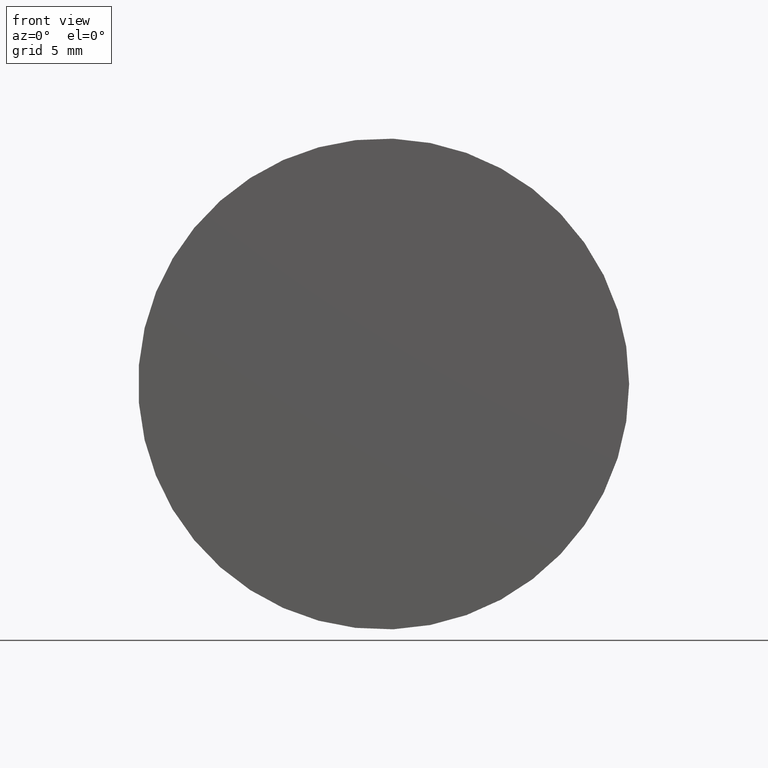
[diagram: clean part render]
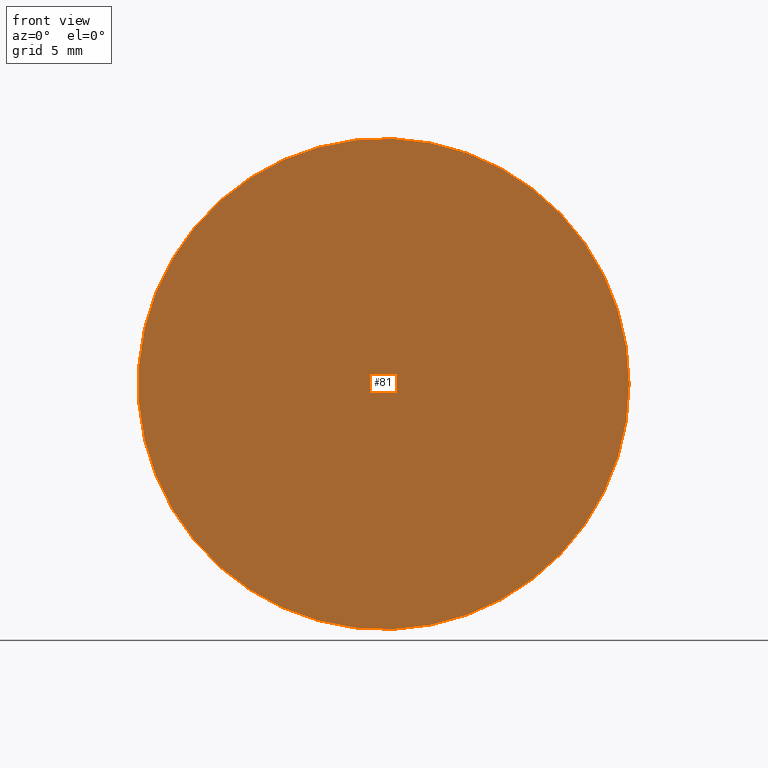
[diagram: same view with one face highlighted and labeled with its STEP entity id]
A machine part, front view. The second image highlights one B-rep face of the part: STEP entity #81.
In plain terms, the highlighted planar face has unit normal (0, 1, 0).
Its self-contained STEP definition (entity closure, byte-faithful):
#28=FACE_OUTER_BOUND('',#39,.T.);
#39=EDGE_LOOP('',(#69));
#47=CIRCLE('',#96,18.5);
#53=VERTEX_POINT('',#143);
#59=EDGE_CURVE('',#53,#53,#47,.T.);
#69=ORIENTED_EDGE('',*,*,#59,.F.);
#75=PLANE('',#95);
#81=ADVANCED_FACE('',(#28),#75,.F.);
#95=AXIS2_PLACEMENT_3D('',#142,#120,#121);
#96=AXIS2_PLACEMENT_3D('',#144,#122,#123);
#120=DIRECTION('center_axis',(0.,1.,0.));
#121=DIRECTION('ref_axis',(0.,0.,1.));
#122=DIRECTION('center_axis',(0.,1.,0.));
#123=DIRECTION('ref_axis',(1.,0.,0.));
#142=CARTESIAN_POINT('Origin',(0.,0.,0.));
#143=CARTESIAN_POINT('',(18.5,0.,0.));
#144=CARTESIAN_POINT('Origin',(0.,0.,0.));